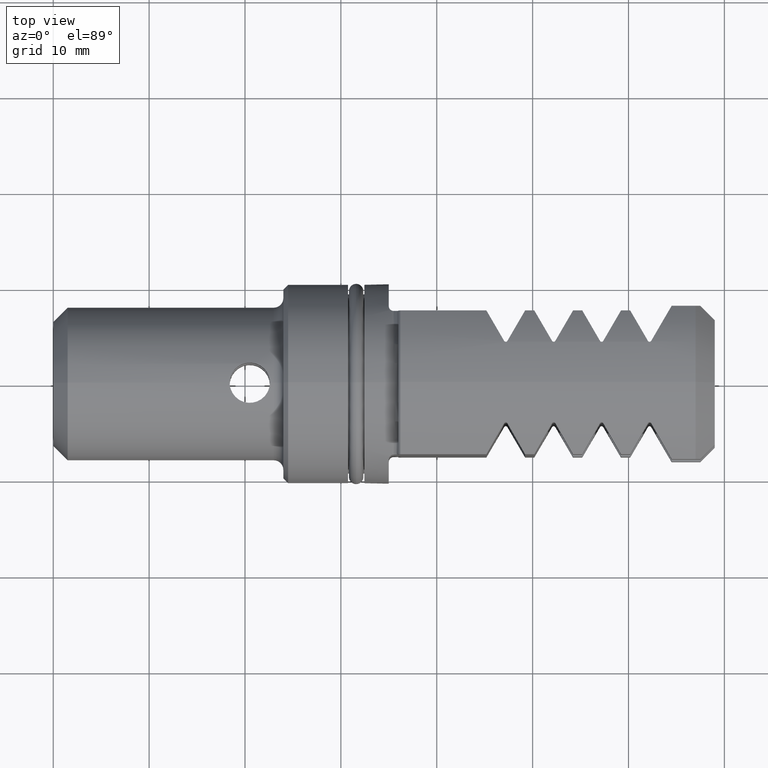
[diagram: clean part render]
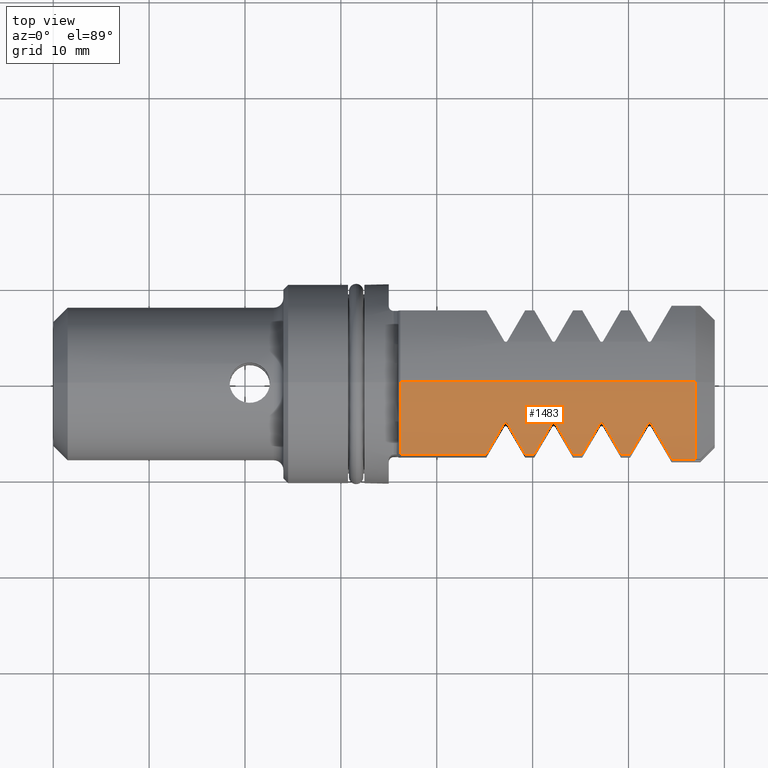
[diagram: same view with one face highlighted and labeled with its STEP entity id]
A machine part, top view. The second image highlights one B-rep face of the part: STEP entity #1483.
In plain terms, the highlighted cylindrical surface (partial cylindrical patch) has radius 12.5 mm, axis along (-1, -0, -0).
Its self-contained STEP definition (entity closure, byte-faithful):
#17 = EDGE_CURVE ( 'NONE', #3737, #2382, #2581, .T. ) ;
#25 = CARTESIAN_POINT ( 'NONE',  ( 47.37320508075686800, -4.299999999999967000, 11.73712060089698500 ) ) ;
#31 = CARTESIAN_POINT ( 'NONE',  ( 47.33910030360200900, -4.240928793186936800, 11.75876187033035700 ) ) ;
#38 = CARTESIAN_POINT ( 'NONE',  ( 47.27086561622686400, -4.199918763276437900, 11.77330380094482400 ) ) ;
#43 = CARTESIAN_POINT ( 'NONE',  ( 47.12867658386037600, -4.200081498699546500, 11.77324574668112200 ) ) ;
#58 = CARTESIAN_POINT ( 'NONE',  ( 47.06060448452137700, -4.241440115156160000, 11.75857454291484700 ) ) ;
#102 = CARTESIAN_POINT ( 'NONE',  ( 47.02679491924312300, -4.299999999999965200, 11.73712060089698100 ) ) ;
#135 = EDGE_CURVE ( 'NONE', #1190, #3860, #1138, .T. ) ;
#151 = VERTEX_POINT ( 'NONE', #2512 ) ;
#272 = LINE ( 'NONE', #3884, #596 ) ;
#281 = CARTESIAN_POINT ( 'NONE',  ( 67.00000000000000000, 0.0000000000000000000, 0.0000000000000000000 ) ) ;
#283 = DIRECTION ( 'NONE',  ( 0.0000000000000000000, 0.0000000000000000000, 1.000000000000000000 ) ) ;
#325 = VECTOR ( 'NONE', #1461, 1000.000000000000000 ) ;
#328 = LINE ( 'NONE', #2092, #3511 ) ;
#356 = DIRECTION ( 'NONE',  ( -1.000000000000000000, -0.0000000000000000000, -0.0000000000000000000 ) ) ;
#363 = CARTESIAN_POINT ( 'NONE',  ( 59.22072594216376000, -7.500000000000005300, 9.999999999999811700 ) ) ;
#373 = DIRECTION ( 'NONE',  ( -1.000000000000000000, -0.0000000000000000000, -0.0000000000000000000 ) ) ;
#380 = CARTESIAN_POINT ( 'NONE',  ( -32.53304341604300700, 0.0000000000000000000, 12.50000000000000000 ) ) ;
#402 = ORIENTED_EDGE ( 'NONE', *, *, #1852, .T. ) ;
#410 = CARTESIAN_POINT ( 'NONE',  ( 52.02679491924310900, -4.299999999999863000, 11.73712060089702000 ) ) ;
#430 = VERTEX_POINT ( 'NONE', #2124 ) ;
#480 = CARTESIAN_POINT ( 'NONE',  ( 63.15254352397457900, -5.649853779944593600, 11.24258949304433500 ) ) ;
#522 = VERTEX_POINT ( 'NONE', #2587 ) ;
#552 = CARTESIAN_POINT ( 'NONE',  ( 45.17927405783623100, -7.500000000000005300, 9.999999999999994700 ) ) ;
#594 = CARTESIAN_POINT ( 'NONE',  ( 59.22072594216376000, -7.500000000000005300, 9.999999999999811700 ) ) ;
#596 = VECTOR ( 'NONE', #4211, 1000.000000000000000 ) ;
#600 = CARTESIAN_POINT ( 'NONE',  ( 57.37320508075687500, -4.299999999999963400, 11.73712060089697400 ) ) ;
#601 = CARTESIAN_POINT ( 'NONE',  ( 58.03587947158295200, -5.447785713785467700, 11.31661895171904000 ) ) ;
#613 = CARTESIAN_POINT ( 'NONE',  ( 67.00000000000000000, -8.000000000000000000, 9.604686356149274600 ) ) ;
#759 = B_SPLINE_CURVE_WITH_KNOTS ( 'NONE', 3,
 ( #3718, #2979, #1972, #2983, #3195, #3562 ),
 .UNSPECIFIED., .F., .F.,
 ( 4, 2, 4 ),
 ( 0.0007579772369346665000, 0.0009700230662062421800, 0.001182068895477817900 ),
 .UNSPECIFIED. ) ;
#840 = CARTESIAN_POINT ( 'NONE',  ( 64.50940107675853600, -8.000000000000000000, 9.604686356149274600 ) ) ;
#841 = AXIS2_PLACEMENT_3D ( 'NONE', #281, #373, #283 ) ;
#846 = VERTEX_POINT ( 'NONE', #3637 ) ;
#847 = CARTESIAN_POINT ( 'NONE',  ( 63.87165511103813700, -6.895391585050184300, 10.52474423122406200 ) ) ;
#854 = CARTESIAN_POINT ( 'NONE',  ( 55.17927405783624600, -7.500000000000004400, 9.999999999999991100 ) ) ;
#866 = CARTESIAN_POINT ( 'NONE',  ( 58.65612887158805200, -6.522089187958370000, 10.73343310903124100 ) ) ;
#886 = CYLINDRICAL_SURFACE ( 'NONE', #3192, 12.50000000000000000 ) ;
#902 = ORIENTED_EDGE ( 'NONE', *, *, #3452, .T. ) ;
#928 = ORIENTED_EDGE ( 'NONE', *, *, #2816, .T. ) ;
#991 = CARTESIAN_POINT ( 'NONE',  ( 49.22072594216375300, -7.500000000000004400, 9.999999999999888100 ) ) ;
#1020 = ORIENTED_EDGE ( 'NONE', *, *, #1766, .T. ) ;
#1056 = VERTEX_POINT ( 'NONE', #3164 ) ;
#1108 = VERTEX_POINT ( 'NONE', #3916 ) ;
#1113 = LINE ( 'NONE', #380, #1152 ) ;
#1138 = LINE ( 'NONE', #1879, #2738 ) ;
#1152 = VECTOR ( 'NONE', #356, 1000.000000000000000 ) ;
#1176 = VERTEX_POINT ( 'NONE', #2630 ) ;
#1190 = VERTEX_POINT ( 'NONE', #4183 ) ;
#1301 = ORIENTED_EDGE ( 'NONE', *, *, #2384, .T. ) ;
#1329 =( BOUNDED_CURVE ( )  B_SPLINE_CURVE ( 3, ( #2291, #2278, #2257, #2252 ),
 .UNSPECIFIED., .F., .F. ) 
 B_SPLINE_CURVE_WITH_KNOTS ( ( 4, 4 ),
 ( 1.921969906692754000, 2.214297435588175500 ),
 .UNSPECIFIED. ) 
 CURVE ( )  GEOMETRIC_REPRESENTATION_ITEM ( )  RATIONAL_B_SPLINE_CURVE ( ( 1.000000000000000000, 0.9928913871268317800, 0.9928913871268317800, 1.000000000000000000 ) ) 
 REPRESENTATION_ITEM ( '' )  );
#1408 = CARTESIAN_POINT ( 'NONE',  ( 60.17927405783627400, -7.500000000000002700, 9.999999999999987600 ) ) ;
#1415 = CARTESIAN_POINT ( 'NONE',  ( -32.53304341604299300, -7.500000000000151000, 9.999999999999888100 ) ) ;
#1418 = AXIS2_PLACEMENT_3D ( 'NONE', #3465, #3379, #3432 ) ;
#1421 = FACE_OUTER_BOUND ( 'NONE', #3022, .T. ) ;
#1447 = CIRCLE ( 'NONE', #1418, 12.50000000000000000 ) ;
#1453 = ORIENTED_EDGE ( 'NONE', *, *, #2977, .T. ) ;
#1461 = DIRECTION ( 'NONE',  ( 1.000000000000000000, 0.0000000000000000000, 0.0000000000000000000 ) ) ;
#1483 = ADVANCED_FACE ( 'NONE', ( #1421 ), #886, .T. ) ;
#1488 = CARTESIAN_POINT ( 'NONE',  ( 49.22072594216375300, -7.500000000000004400, 9.999999999999888100 ) ) ;
#1491 = CARTESIAN_POINT ( 'NONE',  ( 48.65612887158803800, -6.522089187958336300, 10.73343310903125700 ) ) ;
#1499 = VERTEX_POINT ( 'NONE', #410 ) ;
#1502 =( BOUNDED_CURVE ( )  B_SPLINE_CURVE ( 3, ( #2320, #2353, #2313, #2311 ),
 .UNSPECIFIED., .F., .F. ) 
 B_SPLINE_CURVE_WITH_KNOTS ( ( 4, 4 ),
 ( 0.9272952180016111900, 1.219622746897030000 ),
 .UNSPECIFIED. ) 
 CURVE ( )  GEOMETRIC_REPRESENTATION_ITEM ( )  RATIONAL_B_SPLINE_CURVE ( ( 1.000000000000000000, 0.9928913871268321100, 0.9928913871268321100, 1.000000000000000000 ) ) 
 REPRESENTATION_ITEM ( '' )  );
#1504 = CARTESIAN_POINT ( 'NONE',  ( 48.03587947158295200, -5.447785713785442000, 11.31661895171904500 ) ) ;
#1518 = CARTESIAN_POINT ( 'NONE',  ( 47.37320508075686800, -4.299999999999967000, 11.73712060089698500 ) ) ;
#1519 = EDGE_CURVE ( 'NONE', #1108, #1176, #759, .T. ) ;
#1585 = EDGE_CURVE ( 'NONE', #1176, #3291, #3044, .T. ) ;
#1609 = VERTEX_POINT ( 'NONE', #613 ) ;
#1611 = LINE ( 'NONE', #4013, #2044 ) ;
#1619 = EDGE_CURVE ( 'NONE', #2784, #4196, #3134, .T. ) ;
#1669 = CARTESIAN_POINT ( 'NONE',  ( 50.74387112841201700, -6.522089187958272300, 10.73343310903130100 ) ) ;
#1685 = CARTESIAN_POINT ( 'NONE',  ( 36.19999999999998900, -7.499999999999894300, 10.00000000000008200 ) ) ;
#1730 = EDGE_CURVE ( 'NONE', #1609, #430, #1882, .T. ) ;
#1755 = ORIENTED_EDGE ( 'NONE', *, *, #4201, .T. ) ;
#1766 = EDGE_CURVE ( 'NONE', #522, #151, #3131, .T. ) ;
#1773 = ORIENTED_EDGE ( 'NONE', *, *, #2310, .T. ) ;
#1794 = CARTESIAN_POINT ( 'NONE',  ( 64.50940107675853600, -8.000000000000000000, 9.604686356149274600 ) ) ;
#1828 = CARTESIAN_POINT ( 'NONE',  ( 62.37320508075687500, -4.299999999999861300, 11.73712060089701300 ) ) ;
#1831 = EDGE_CURVE ( 'NONE', #4196, #3513, #272, .T. ) ;
#1844 = ORIENTED_EDGE ( 'NONE', *, *, #135, .T. ) ;
#1852 = EDGE_CURVE ( 'NONE', #4061, #522, #3629, .T. ) ;
#1870 = EDGE_CURVE ( 'NONE', #3291, #1609, #1611, .T. ) ;
#1879 = CARTESIAN_POINT ( 'NONE',  ( -32.53304341604302200, -7.499999999999843700, 10.00000000000011700 ) ) ;
#1882 = CIRCLE ( 'NONE', #841, 12.50000000000000000 ) ;
#1900 = DIRECTION ( 'NONE',  ( 1.000000000000000000, 0.0000000000000000000, 0.0000000000000000000 ) ) ;
#1972 = CARTESIAN_POINT ( 'NONE',  ( 62.12867658386036100, -4.200081498699444400, 11.77324574668116100 ) ) ;
#2044 = VECTOR ( 'NONE', #4066, 1000.000000000000000 ) ;
#2074 = DIRECTION ( 'NONE',  ( 1.000000000000000000, 0.0000000000000000000, 0.0000000000000000000 ) ) ;
#2092 = CARTESIAN_POINT ( 'NONE',  ( -32.53304341604302200, -7.499999999999894300, 10.00000000000008200 ) ) ;
#2110 = VERTEX_POINT ( 'NONE', #2499 ) ;
#2124 = CARTESIAN_POINT ( 'NONE',  ( 67.00000000000000000, 0.0000000000000000000, 12.50000000000000000 ) ) ;
#2252 = CARTESIAN_POINT ( 'NONE',  ( 54.22072594216369600, -7.500000000000002700, 10.00000000000011700 ) ) ;
#2257 = CARTESIAN_POINT ( 'NONE',  ( 53.65612887158796700, -6.522089187958225200, 10.73343310903132400 ) ) ;
#2275 = EDGE_CURVE ( 'NONE', #2382, #1499, #3071, .T. ) ;
#2278 = CARTESIAN_POINT ( 'NONE',  ( 53.03587947158290900, -5.447785713785337200, 11.31661895171910000 ) ) ;
#2291 = CARTESIAN_POINT ( 'NONE',  ( 52.37320508075689000, -4.299999999999863000, 11.73712060089701300 ) ) ;
#2310 = EDGE_CURVE ( 'NONE', #3513, #1108, #3959, .T. ) ;
#2311 = CARTESIAN_POINT ( 'NONE',  ( 57.02679491924311600, -4.299999999999965200, 11.73712060089698100 ) ) ;
#2313 = CARTESIAN_POINT ( 'NONE',  ( 56.36412052841706800, -5.447785713785431300, 11.31661895171905000 ) ) ;
#2320 = CARTESIAN_POINT ( 'NONE',  ( 55.17927405783624600, -7.500000000000004400, 9.999999999999991100 ) ) ;
#2341 = ORIENTED_EDGE ( 'NONE', *, *, #1831, .T. ) ;
#2353 = CARTESIAN_POINT ( 'NONE',  ( 55.74387112841199600, -6.522089187958306100, 10.73343310903127400 ) ) ;
#2382 = VERTEX_POINT ( 'NONE', #3248 ) ;
#2384 = EDGE_CURVE ( 'NONE', #1056, #2784, #2672, .T. ) ;
#2405 = EDGE_CURVE ( 'NONE', #3342, #846, #1447, .T. ) ;
#2465 = CARTESIAN_POINT ( 'NONE',  ( 52.37320508075689000, -4.299999999999863000, 11.73712060089701300 ) ) ;
#2467 = CARTESIAN_POINT ( 'NONE',  ( 52.33910030360202400, -4.240928793186832000, 11.75876187033039600 ) ) ;
#2474 = CARTESIAN_POINT ( 'NONE',  ( 52.27086561622689200, -4.199918763276334000, 11.77330380094485900 ) ) ;
#2476 = CARTESIAN_POINT ( 'NONE',  ( 52.12867658386037600, -4.200081498699441700, 11.77324574668116200 ) ) ;
#2490 = CARTESIAN_POINT ( 'NONE',  ( 52.02679491924310900, -4.299999999999863000, 11.73712060089702000 ) ) ;
#2491 = CARTESIAN_POINT ( 'NONE',  ( 52.06060448452139200, -4.241440115156057900, 11.75857454291488600 ) ) ;
#2499 = CARTESIAN_POINT ( 'NONE',  ( 52.37320508075689000, -4.299999999999863000, 11.73712060089701300 ) ) ;
#2512 = CARTESIAN_POINT ( 'NONE',  ( 47.37320508075686800, -4.299999999999967000, 11.73712060089698500 ) ) ;
#2550 = CARTESIAN_POINT ( 'NONE',  ( 57.37320508075687500, -4.299999999999963400, 11.73712060089697400 ) ) ;
#2581 = LINE ( 'NONE', #1415, #325 ) ;
#2587 = CARTESIAN_POINT ( 'NONE',  ( 47.02679491924312300, -4.299999999999965200, 11.73712060089698100 ) ) ;
#2597 = CARTESIAN_POINT ( 'NONE',  ( 51.36412052841708200, -5.447785713785362000, 11.31661895171908900 ) ) ;
#2630 = CARTESIAN_POINT ( 'NONE',  ( 62.37320508075687500, -4.299999999999861300, 11.73712060089701300 ) ) ;
#2672 = B_SPLINE_CURVE_WITH_KNOTS ( 'NONE', 3,
 ( #3502, #3480, #3301, #3408, #3414, #3419 ),
 .UNSPECIFIED., .F., .F.,
 ( 4, 2, 4 ),
 ( 0.0007579772369345680600, 0.0009700230662061371200, 0.001182068895477706200 ),
 .UNSPECIFIED. ) ;
#2738 = VECTOR ( 'NONE', #1900, 1000.000000000000000 ) ;
#2784 = VERTEX_POINT ( 'NONE', #2550 ) ;
#2816 = EDGE_CURVE ( 'NONE', #1499, #2110, #2896, .T. ) ;
#2896 = B_SPLINE_CURVE_WITH_KNOTS ( 'NONE', 3,
 ( #2490, #2491, #2476, #2474, #2467, #2465 ),
 .UNSPECIFIED., .F., .F.,
 ( 4, 2, 4 ),
 ( 0.0007579772369346600000, 0.0009700230662062391500, 0.001182068895477818300 ),
 .UNSPECIFIED. ) ;
#2977 = EDGE_CURVE ( 'NONE', #3860, #1056, #1502, .T. ) ;
#2979 = CARTESIAN_POINT ( 'NONE',  ( 62.06060448452136300, -4.241440115156057000, 11.75857454291488600 ) ) ;
#2983 = CARTESIAN_POINT ( 'NONE',  ( 62.27086561622687800, -4.199918763276335700, 11.77330380094485900 ) ) ;
#3007 = CARTESIAN_POINT ( 'NONE',  ( 52.02679491924310900, -4.299999999999863000, 11.73712060089702000 ) ) ;
#3010 = CARTESIAN_POINT ( 'NONE',  ( -32.53304341604300700, 0.0000000000000000000, 0.0000000000000000000 ) ) ;
#3021 = EDGE_CURVE ( 'NONE', #2110, #1190, #1329, .T. ) ;
#3022 = EDGE_LOOP ( 'NONE', ( #4187, #1755, #3148, #3375, #402, #1020, #902, #3956, #3728, #928, #3561, #1844, #1453, #1301, #3590, #2341, #1773, #3200, #3175, #4072 ) ) ;
#3044 =( BOUNDED_CURVE ( )  B_SPLINE_CURVE ( 3, ( #1828, #480, #847, #840 ),
 .UNSPECIFIED., .F., .F. ) 
 B_SPLINE_CURVE_WITH_KNOTS ( ( 4, 4 ),
 ( 1.921969906692754200, 2.265294592421452300 ),
 .UNSPECIFIED. ) 
 CURVE ( )  GEOMETRIC_REPRESENTATION_ITEM ( )  RATIONAL_B_SPLINE_CURVE ( ( 1.000000000000000000, 0.9902014441294460000, 0.9902014441294460000, 1.000000000000000000 ) ) 
 REPRESENTATION_ITEM ( '' )  );
#3071 =( BOUNDED_CURVE ( )  B_SPLINE_CURVE ( 3, ( #3899, #1669, #2597, #3007 ),
 .UNSPECIFIED., .F., .F. ) 
 B_SPLINE_CURVE_WITH_KNOTS ( ( 4, 4 ),
 ( 0.9272952180016115200, 1.219622746897039100 ),
 .UNSPECIFIED. ) 
 CURVE ( )  GEOMETRIC_REPRESENTATION_ITEM ( )  RATIONAL_B_SPLINE_CURVE ( ( 1.000000000000000000, 0.9928913871268314500, 0.9928913871268314500, 1.000000000000000000 ) ) 
 REPRESENTATION_ITEM ( '' )  );
#3087 = CARTESIAN_POINT ( 'NONE',  ( 62.02679491924308800, -4.299999999999863000, 11.73712060089702000 ) ) ;
#3119 = EDGE_CURVE ( 'NONE', #3342, #4061, #328, .T. ) ;
#3131 = B_SPLINE_CURVE_WITH_KNOTS ( 'NONE', 3,
 ( #102, #58, #43, #38, #31, #25 ),
 .UNSPECIFIED., .F., .F.,
 ( 4, 2, 4 ),
 ( 0.0007579772369345722900, 0.0009700230662061388600, 0.001182068895477705300 ),
 .UNSPECIFIED. ) ;
#3134 =( BOUNDED_CURVE ( )  B_SPLINE_CURVE ( 3, ( #600, #601, #866, #594 ),
 .UNSPECIFIED., .F., .F. ) 
 B_SPLINE_CURVE_WITH_KNOTS ( ( 4, 4 ),
 ( 1.921969906692763400, 2.214297435588190600 ),
 .UNSPECIFIED. ) 
 CURVE ( )  GEOMETRIC_REPRESENTATION_ITEM ( )  RATIONAL_B_SPLINE_CURVE ( ( 1.000000000000000000, 0.9928913871268316700, 0.9928913871268316700, 1.000000000000000000 ) ) 
 REPRESENTATION_ITEM ( '' )  );
#3148 = ORIENTED_EDGE ( 'NONE', *, *, #2405, .F. ) ;
#3149 = CARTESIAN_POINT ( 'NONE',  ( 60.17927405783627400, -7.500000000000002700, 9.999999999999987600 ) ) ;
#3164 = CARTESIAN_POINT ( 'NONE',  ( 57.02679491924311600, -4.299999999999965200, 11.73712060089698100 ) ) ;
#3175 = ORIENTED_EDGE ( 'NONE', *, *, #1585, .T. ) ;
#3181 = CARTESIAN_POINT ( 'NONE',  ( 61.36412052841706100, -5.447785713785365600, 11.31661895171908900 ) ) ;
#3192 = AXIS2_PLACEMENT_3D ( 'NONE', #3010, #3642, #3643 ) ;
#3195 = CARTESIAN_POINT ( 'NONE',  ( 62.33910030360200900, -4.240928793186832000, 11.75876187033039600 ) ) ;
#3200 = ORIENTED_EDGE ( 'NONE', *, *, #1519, .T. ) ;
#3248 = CARTESIAN_POINT ( 'NONE',  ( 50.17927405783629500, -7.500000000000002700, 9.999999999999991100 ) ) ;
#3282 = CARTESIAN_POINT ( 'NONE',  ( 60.74387112841201000, -6.522089187958278500, 10.73343310903129800 ) ) ;
#3291 = VERTEX_POINT ( 'NONE', #1794 ) ;
#3301 = CARTESIAN_POINT ( 'NONE',  ( 57.12867658386039000, -4.200081498699545600, 11.77324574668112200 ) ) ;
#3342 = VERTEX_POINT ( 'NONE', #1685 ) ;
#3375 = ORIENTED_EDGE ( 'NONE', *, *, #3119, .T. ) ;
#3379 = DIRECTION ( 'NONE',  ( -1.000000000000000000, -0.0000000000000000000, -0.0000000000000000000 ) ) ;
#3408 = CARTESIAN_POINT ( 'NONE',  ( 57.27086561622688500, -4.199918763276438800, 11.77330380094482400 ) ) ;
#3414 = CARTESIAN_POINT ( 'NONE',  ( 57.33910030360202400, -4.240928793186935900, 11.75876187033035700 ) ) ;
#3419 = CARTESIAN_POINT ( 'NONE',  ( 57.37320508075687500, -4.299999999999963400, 11.73712060089697400 ) ) ;
#3432 = DIRECTION ( 'NONE',  ( 0.0000000000000000000, 0.0000000000000000000, 1.000000000000000000 ) ) ;
#3452 = EDGE_CURVE ( 'NONE', #151, #3737, #3821, .T. ) ;
#3465 = CARTESIAN_POINT ( 'NONE',  ( 36.19999999999998900, 0.0000000000000000000, 0.0000000000000000000 ) ) ;
#3480 = CARTESIAN_POINT ( 'NONE',  ( 57.06060448452139200, -4.241440115156162700, 11.75857454291484500 ) ) ;
#3502 = CARTESIAN_POINT ( 'NONE',  ( 57.02679491924311600, -4.299999999999965200, 11.73712060089698100 ) ) ;
#3511 = VECTOR ( 'NONE', #2074, 1000.000000000000000 ) ;
#3513 = VERTEX_POINT ( 'NONE', #1408 ) ;
#3561 = ORIENTED_EDGE ( 'NONE', *, *, #3021, .T. ) ;
#3562 = CARTESIAN_POINT ( 'NONE',  ( 62.37320508075687500, -4.299999999999861300, 11.73712060089701300 ) ) ;
#3590 = ORIENTED_EDGE ( 'NONE', *, *, #1619, .T. ) ;
#3629 =( BOUNDED_CURVE ( )  B_SPLINE_CURVE ( 3, ( #4094, #4104, #4053, #4047 ),
 .UNSPECIFIED., .F., .F. ) 
 B_SPLINE_CURVE_WITH_KNOTS ( ( 4, 4 ),
 ( 0.9272952180016118500, 1.219622746897030700 ),
 .UNSPECIFIED. ) 
 CURVE ( )  GEOMETRIC_REPRESENTATION_ITEM ( )  RATIONAL_B_SPLINE_CURVE ( ( 1.000000000000000000, 0.9928913871268321100, 0.9928913871268321100, 1.000000000000000000 ) ) 
 REPRESENTATION_ITEM ( '' )  );
#3637 = CARTESIAN_POINT ( 'NONE',  ( 36.19999999999998900, 0.0000000000000000000, 12.50000000000000000 ) ) ;
#3642 = DIRECTION ( 'NONE',  ( -1.000000000000000000, -0.0000000000000000000, -0.0000000000000000000 ) ) ;
#3643 = DIRECTION ( 'NONE',  ( 0.0000000000000000000, 0.0000000000000000000, 1.000000000000000000 ) ) ;
#3718 = CARTESIAN_POINT ( 'NONE',  ( 62.02679491924308800, -4.299999999999863000, 11.73712060089702000 ) ) ;
#3728 = ORIENTED_EDGE ( 'NONE', *, *, #2275, .T. ) ;
#3737 = VERTEX_POINT ( 'NONE', #991 ) ;
#3821 =( BOUNDED_CURVE ( )  B_SPLINE_CURVE ( 3, ( #1518, #1504, #1491, #1488 ),
 .UNSPECIFIED., .F., .F. ) 
 B_SPLINE_CURVE_WITH_KNOTS ( ( 4, 4 ),
 ( 1.921969906692762500, 2.214297435588186600 ),
 .UNSPECIFIED. ) 
 CURVE ( )  GEOMETRIC_REPRESENTATION_ITEM ( )  RATIONAL_B_SPLINE_CURVE ( ( 1.000000000000000000, 0.9928913871268317800, 0.9928913871268317800, 1.000000000000000000 ) ) 
 REPRESENTATION_ITEM ( '' )  );
#3860 = VERTEX_POINT ( 'NONE', #854 ) ;
#3884 = CARTESIAN_POINT ( 'NONE',  ( -32.53304341604298600, -7.500000000000254000, 9.999999999999811700 ) ) ;
#3899 = CARTESIAN_POINT ( 'NONE',  ( 50.17927405783629500, -7.500000000000002700, 9.999999999999991100 ) ) ;
#3916 = CARTESIAN_POINT ( 'NONE',  ( 62.02679491924308800, -4.299999999999863000, 11.73712060089702000 ) ) ;
#3956 = ORIENTED_EDGE ( 'NONE', *, *, #17, .T. ) ;
#3959 =( BOUNDED_CURVE ( )  B_SPLINE_CURVE ( 3, ( #3149, #3282, #3181, #3087 ),
 .UNSPECIFIED., .F., .F. ) 
 B_SPLINE_CURVE_WITH_KNOTS ( ( 4, 4 ),
 ( 0.9272952180016110800, 1.219622746897038900 ),
 .UNSPECIFIED. ) 
 CURVE ( )  GEOMETRIC_REPRESENTATION_ITEM ( )  RATIONAL_B_SPLINE_CURVE ( ( 1.000000000000000000, 0.9928913871268314500, 0.9928913871268314500, 1.000000000000000000 ) ) 
 REPRESENTATION_ITEM ( '' )  );
#4013 = CARTESIAN_POINT ( 'NONE',  ( -32.53304341604300700, -8.000000000000000000, 9.604686356149274600 ) ) ;
#4047 = CARTESIAN_POINT ( 'NONE',  ( 47.02679491924312300, -4.299999999999965200, 11.73712060089698100 ) ) ;
#4053 = CARTESIAN_POINT ( 'NONE',  ( 46.36412052841705400, -5.447785713785425100, 11.31661895171905200 ) ) ;
#4061 = VERTEX_POINT ( 'NONE', #552 ) ;
#4066 = DIRECTION ( 'NONE',  ( 1.000000000000000000, 0.0000000000000000000, 0.0000000000000000000 ) ) ;
#4072 = ORIENTED_EDGE ( 'NONE', *, *, #1870, .T. ) ;
#4094 = CARTESIAN_POINT ( 'NONE',  ( 45.17927405783623100, -7.500000000000005300, 9.999999999999994700 ) ) ;
#4104 = CARTESIAN_POINT ( 'NONE',  ( 45.74387112841198200, -6.522089187958300700, 10.73343310903127800 ) ) ;
#4183 = CARTESIAN_POINT ( 'NONE',  ( 54.22072594216369600, -7.500000000000002700, 10.00000000000011700 ) ) ;
#4187 = ORIENTED_EDGE ( 'NONE', *, *, #1730, .T. ) ;
#4196 = VERTEX_POINT ( 'NONE', #363 ) ;
#4201 = EDGE_CURVE ( 'NONE', #430, #846, #1113, .T. ) ;
#4211 = DIRECTION ( 'NONE',  ( 1.000000000000000000, 0.0000000000000000000, 0.0000000000000000000 ) ) ;